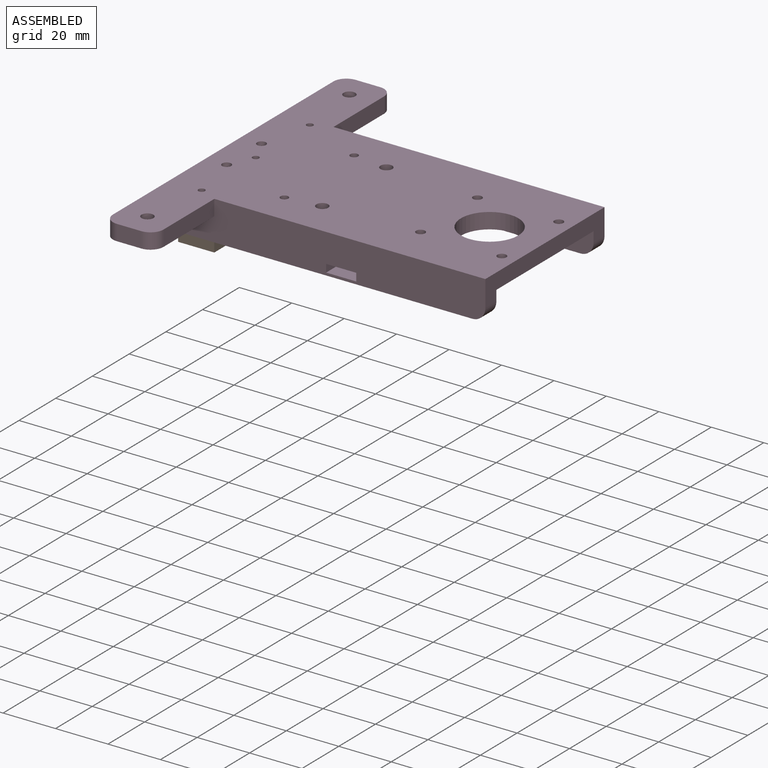
[diagram: assembled view]
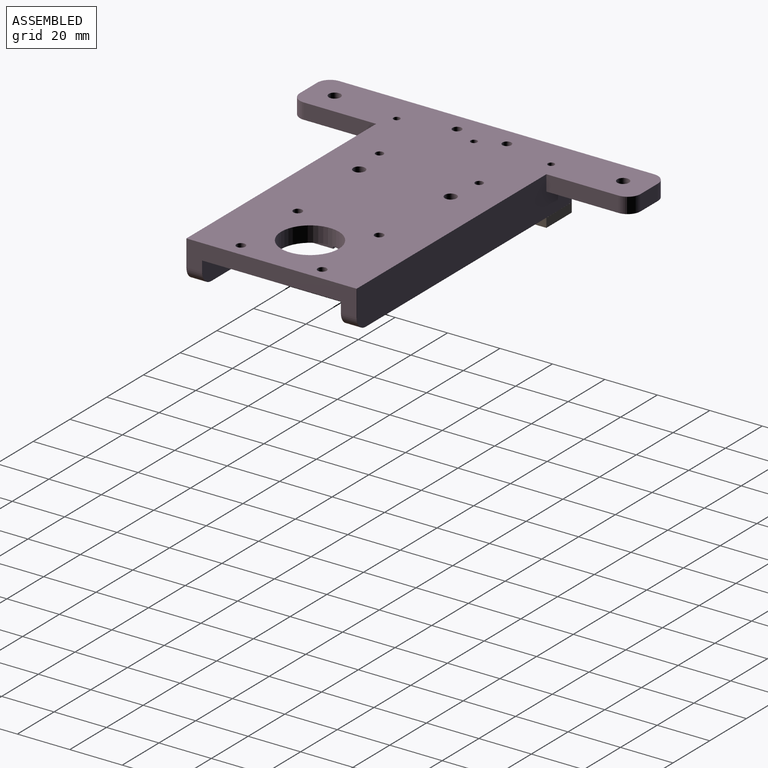
[diagram: assembled view, second angle]
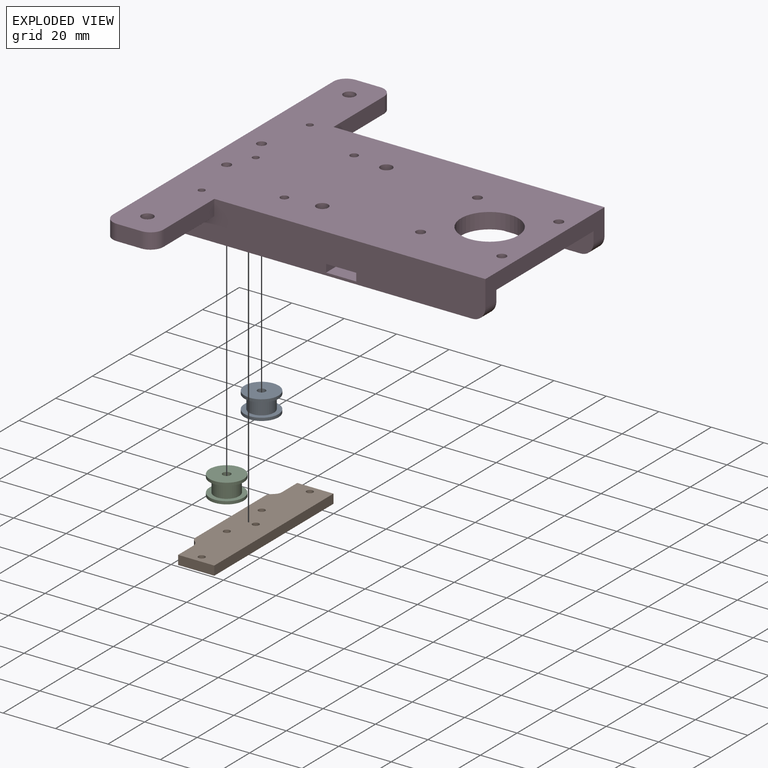
[diagram: exploded view]
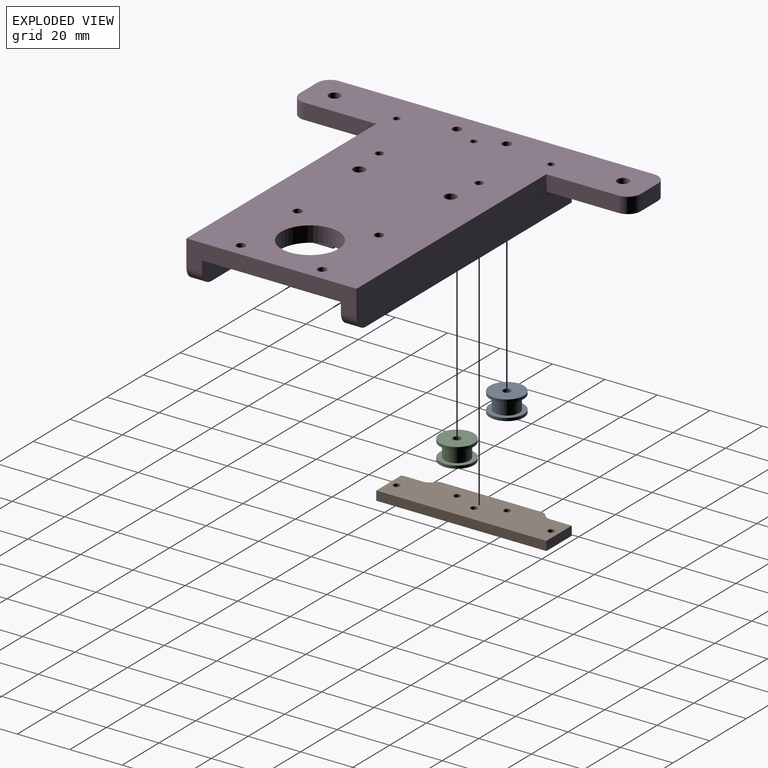
[diagram: exploded view, second angle]
ASSEMBLY  parts=4 mates=3
PART A: 8 faces, bbox 13x13x7.5 mm
  f0: cylinder r=6.5mm len=13mm, axis (0,0,1), area 44.9mm2, adj f2,f3
  f1: cylinder r=1.5mm len=7.47mm, axis (0,0,1), area 70.4mm2, adj f3,f6
  f2: plane 13x13mm, normal (0,0,-1), area 61.9mm2, adj f0,f4
  f3: plane 13x13mm, normal (0,0,1), area 125.7mm2, adj f0,f1
  f4: cylinder r=4.75mm len=9.5mm, axis (0,0,1), area 157.3mm2, adj f2,f7
  f5: cylinder r=6.5mm len=13mm, axis (0,0,1), area 44.9mm2, adj f6,f7
  f6: plane 13x13mm, normal (0,0,-1), area 125.7mm2, adj f1,f5
  f7: plane 13x13mm, normal (0,0,1), area 61.9mm2, adj f4,f5
PART B: 15 faces, bbox 64.9x16.7x3.5 mm
  f0: plane 7.5x3.5mm, normal (0,1,0), area 26.2mm2, adj f1,f7,f8,f9
  f1: plane 13.8x3.5mm, normal (-1,0,0), area 48.3mm2, adj f0,f2,f8,f9
  f2: plane 64.9x3.5mm, normal (0,-1,0), area 227.2mm2, adj f1,f3,f8,f9
  f3: plane 13.8x3.5mm, normal (1,0,0), area 48.3mm2, adj f2,f4,f8,f9
  f4: plane 7.4x3.5mm, normal (0,1,0), area 25.9mm2, adj f3,f5,f8,f9
  f5: extruded ~7.58x3.5mm, area 29.9mm2, adj f4,f6,f8,f9
  f6: plane 34.85x3.5mm, normal (0,1,0), area 122mm2, adj f5,f7,f8,f9
  f7: extruded ~7.58x3.5mm, area 29.9mm2, adj f0,f6,f8,f9
  f8: plane 64.9x16.67mm, normal (0,0,1), area 993.5mm2, adj f0,f1,f2,f3,f4,f5,f6,f7
  f9: plane 64.9x16.67mm, normal (0,0,-1), area 993.5mm2, adj f0,f1,f2,f3,f4,f5,f6,f7
  f10: cylinder r=1.25mm len=3.5mm, axis (0,0,-1), area 27.5mm2, adj f8,f9
  f11: cylinder r=1.25mm len=3.5mm, axis (0,0,-1), area 27.5mm2, adj f8,f9
  f12: cylinder r=1.25mm len=3.5mm, axis (0,0,-1), area 27.5mm2, adj f8,f9
  f13: cylinder r=1.25mm len=3.5mm, axis (0,0,-1), area 27.5mm2, adj f8,f9
  f14: cylinder r=1.25mm len=3.5mm, axis (0,0,-1), area 27.5mm2, adj f8,f9
PART C: same geometry as A
PART D: 103 faces, bbox 130.8x123.5x16 mm
  f0: plane 117.16x15mm, normal (1,0,0), area 1634.9mm2, adj f4,f6,f7,f13,f24,f50,f51,f52
  f1: plane 103.36x8.98mm, normal (-1,0,0), area 887.9mm2, adj f4,f18,f50,f51,f52,f53,f87,f88
  f2: plane 15x10mm, normal (1,0,0), area 115.5mm2, adj f4,f33,f34,f35,f44,f45,f48,f49
  f3: plane 15x10mm, normal (-1,0,0), area 81mm2, adj f4,f33,f34,f35,f44,f45,f46,f49
  f4: plane 129.95x122.68mm, normal (0,0,1), area 6385.8mm2, adj f0,f1,f2,f3,f5,f6,f12,f14
  f5: plane 117.13x14.98mm, normal (-1,0,0), area 1666.2mm2, adj f4,f11,f13,f73,f74,f90,f91,f92
  f6: plane 64.88x10mm, normal (0,-1,0), area 437mm2, adj f0,f4,f13,f59,f60,f89,f93,f96
  f7: plane 27.6x5.95mm, normal (0,-1,0), area 164.2mm2, adj f0,f61,f65,f86
  f8: plane 9.32x5.95mm, normal (1,0,0), area 55.5mm2, adj f61,f62,f67,f84
  f9: plane 120x14.95mm, normal (0,1,0), area 758.8mm2, adj f62,f63,f69,f78,f79,f80,f81,f82
  f10: plane 9.32x5.95mm, normal (-1,0,0), area 55.5mm2, adj f63,f64,f71,f76
  f11: plane 27.5x5.95mm, normal (0,-1,0), area 163.7mm2, adj f5,f64,f73,f74
  f12: cylinder r=11mm len=22mm, axis (0,0,-1), area 414.7mm2, adj f4,f13
  f13: plane 129.95x122.68mm, normal (0,0,-1), area 8667.2mm2, adj f0,f5,f6,f12,f36,f37,f38,f39
  f14: plane 5x4mm, normal (0,-1,0), area 20mm2, adj f4,f15,f16,f58
  f15: plane 79.55x9mm, normal (1,0,0), area 710.6mm2, adj f4,f14,f17,f58,f81
  f16: plane 79.55x9mm, normal (-1,0,0), area 710.6mm2, adj f4,f14,f17,f58,f79
  f17: plane 74.55x5mm, normal (0,0,1), area 367.9mm2, adj f15,f16,f58,f80,f102
  f18: plane 16.93x9mm, normal (0,-1,0), area 152.1mm2, adj f1,f4,f23,f24,f87
  f19: plane 14.86x9mm, normal (0,1,0), area 133.7mm2, adj f4,f24,f97,f98
  f20: plane 9x2.46mm, normal (-1,0,0), area 22.1mm2, adj f4,f21,f24,f98
  f21: cylinder r=8mm len=10.5mm, axis (0,0,-1), area 136mm2, adj f4,f20,f22,f24
  f22: plane 9x1.22mm, normal (-1,0,0), area 11mm2, adj f4,f21,f23,f24
  f23: cylinder r=2.5mm len=9mm, axis (0,0,-1), area 35.3mm2, adj f4,f18,f22,f24
  f24: plane 112.18x25.4mm, normal (0,0,1), area 836.2mm2, adj f0,f18,f19,f20,f21,f22,f23,f59
  f25: cylinder r=2.5mm len=9mm, axis (0,0,-1), area 35.3mm2, adj f4,f26,f31,f32
  f26: plane 9x1.22mm, normal (1,0,0), area 10.9mm2, adj f4,f25,f27,f32
  f27: cylinder r=8mm len=10.49mm, axis (0,0,-1), area 132.9mm2, adj f4,f26,f28,f32
  f28: plane 9x2.8mm, normal (1,0,0), area 25.2mm2, adj f4,f27,f32,f99
  f29: plane 14.96x9mm, normal (0,1,0), area 134.7mm2, adj f4,f32,f90,f99
  f30: plane 103.36x8.98mm, normal (1,0,0), area 922.4mm2, adj f4,f31,f94,f95,f96
  f31: plane 17.02x9mm, normal (0,-1,0), area 153mm2, adj f4,f25,f30,f32,f94
  f32: plane 112.18x25.48mm, normal (0,0,1), area 834.9mm2, adj f25,f26,f27,f28,f29,f31,f60,f91
  f33: plane 10x10mm, normal (0,1,0), area 100mm2, adj f2,f3,f4,f35
  f34: plane 10x10mm, normal (0,-1,0), area 100mm2, adj f2,f3,f4,f35
  f35: plane 15x10mm, normal (0,0,1), area 150mm2, adj f2,f3,f33,f34
  f36: cylinder r=1.5mm len=6mm, axis (0,0,-1), area 56.5mm2, adj f4,f13
  f37: cylinder r=1.5mm len=6mm, axis (0,0,-1), area 56.5mm2, adj f4,f13
  f38: cylinder r=1.7mm len=6mm, axis (0,0,-1), area 64.1mm2, adj f4,f13
  f39: cylinder r=1.7mm len=6mm, axis (0,0,-1), area 64.1mm2, adj f4,f13
  f40: cylinder r=1.7mm len=6mm, axis (0,0,-1), area 64.1mm2, adj f4,f13
  f41: cylinder r=1.7mm len=6mm, axis (0,0,-1), area 64.1mm2, adj f4,f13
  f42: cylinder r=1.7mm len=6mm, axis (0,0,-1), area 64.1mm2, adj f4,f13
  f43: cylinder r=1.7mm len=6mm, axis (0,0,-1), area 64.1mm2, adj f4,f13
  f44: plane 10x6mm, normal (0,1,0), area 48mm2, adj f2,f3,f46,f47,f48,f49
  f45: plane 10x6mm, normal (0,-1,0), area 48mm2, adj f2,f3,f46,f47,f48,f49
  f46: plane 11.5x6mm, normal (0,0,1), area 69mm2, adj f3,f44,f45,f47
  f47: plane 11.5x3mm, normal (-1,0,0), area 34.5mm2, adj f44,f45,f46,f48
  f48: plane 11.5x4mm, normal (0,0,1), area 46mm2, adj f2,f44,f45,f47
  f49: plane 11.5x10mm, normal (0,0,-1), area 115mm2, adj f2,f3,f44,f45
  f50: plane 6x3mm, normal (0,1,0), area 18mm2, adj f0,f1,f51,f53
  f51: plane 11.5x6mm, normal (0,0,-1), area 69mm2, adj f0,f1,f50,f52
  f52: plane 6x3mm, normal (0,-1,0), area 18mm2, adj f0,f1,f51,f53
  f53: plane 11.5x6mm, normal (0,0,1), area 69mm2, adj f0,f1,f50,f52
  f54: cylinder r=2.25mm len=6mm, axis (0,0,-1), area 84.8mm2, adj f4,f13
  f55: cylinder r=2.25mm len=6mm, axis (0,0,-1), area 84.8mm2, adj f4,f13
  f56: cylinder r=2.25mm len=6mm, axis (0,0,-1), area 84.8mm2, adj f4,f13
  f57: cylinder r=2.25mm len=6mm, axis (0,0,-1), area 84.8mm2, adj f4,f13
  f58: cylinder r=5mm len=5mm, axis (-1,0,0), area 39.3mm2, adj f14,f15,f16,f17
  f59: cylinder r=5mm len=5.98mm, axis (-1,0,0), area 46.9mm2, adj f0,f6,f24,f88
  f60: cylinder r=5mm len=5.95mm, axis (1,0,0), area 46.7mm2, adj f6,f32,f92,f95
  f61: cylinder r=5mm len=5.95mm, axis (0,0,1), area 46.7mm2, adj f7,f8,f66,f85
  f62: cylinder r=5mm len=5.95mm, axis (0,0,-1), area 46.7mm2, adj f8,f9,f68,f83
  f63: cylinder r=5mm len=5.95mm, axis (0,0,1), area 46.7mm2, adj f9,f10,f70,f77
  f64: cylinder r=5mm len=5.95mm, axis (0,0,-1), area 46.7mm2, adj f10,f11,f72,f75
  f65: cylinder r=0.02mm len=27.6mm, axis (1,0,0), area 1mm2, adj f0,f7,f13,f66
  f66: torus R=4.98mm, axis (0,0,1), area 0.3mm2, adj f13,f61,f65,f67
  f67: cylinder r=0.02mm len=9.32mm, axis (0,1,0), area 0.4mm2, adj f8,f13,f66,f68
  f68: torus R=4.98mm, axis (0,0,1), area 0.3mm2, adj f13,f62,f67,f69
  f69: cylinder r=0.02mm len=120mm, axis (-1,0,0), area 4.6mm2, adj f9,f13,f68,f70
  f70: torus R=4.98mm, axis (0,0,1), area 0.3mm2, adj f13,f63,f69,f71
  f71: cylinder r=0.02mm len=9.32mm, axis (0,-1,0), area 0.4mm2, adj f10,f13,f70,f72
  f72: torus R=4.98mm, axis (0,0,1), area 0.3mm2, adj f13,f64,f71,f73
  f73: cylinder r=0.02mm len=27.5mm, axis (1,0,0), area 1mm2, adj f5,f11,f13,f72
  f74: cylinder r=0.02mm len=27.5mm, axis (-1,0,0), area 1mm2, adj f4,f5,f11,f75
  f75: torus R=4.98mm, axis (0,0,1), area 0.3mm2, adj f4,f64,f74,f76
  f76: cylinder r=0.02mm len=9.32mm, axis (0,1,0), area 0.4mm2, adj f4,f10,f75,f77
  f77: torus R=4.98mm, axis (0,0,1), area 0.3mm2, adj f4,f63,f76,f78
  f78: cylinder r=0.02mm len=57.52mm, axis (1,0,0), area 2.2mm2, adj f4,f9,f77,f79
  f79: cylinder r=0.02mm len=9.02mm, axis (0,0,1), area 0.3mm2, adj f9,f16,f78,f80
  f80: cylinder r=0.02mm len=5mm, axis (1,0,0), area 0.2mm2, adj f9,f17,f79,f81
  f81: cylinder r=0.02mm len=9.02mm, axis (0,0,-1), area 0.3mm2, adj f9,f15,f80,f82
  f82: cylinder r=0.02mm len=57.52mm, axis (1,0,0), area 2.2mm2, adj f4,f9,f81,f83
  f83: torus R=4.98mm, axis (0,0,1), area 0.3mm2, adj f4,f62,f82,f84
  f84: cylinder r=0.02mm len=9.32mm, axis (0,-1,0), area 0.4mm2, adj f4,f8,f83,f85
  f85: torus R=4.98mm, axis (0,0,1), area 0.3mm2, adj f4,f61,f84,f86
  f86: cylinder r=0.02mm len=27.6mm, axis (-1,0,0), area 1mm2, adj f0,f4,f7,f85
  f87: cylinder r=0.02mm len=98.38mm, axis (0,1,0), area 3.7mm2, adj f1,f18,f24,f88
  f88: torus R=4.98mm, axis (1,0,0), area 0.3mm2, adj f1,f59,f87,f89
  f89: cylinder r=0.02mm len=4mm, axis (0,0,1), area 0.2mm2, adj f1,f4,f6,f88
  f90: cylinder r=0.02mm len=9mm, axis (0,0,-1), area 0.3mm2, adj f4,f5,f29,f91
  f91: cylinder r=0.02mm len=112.18mm, axis (0,1,0), area 4.3mm2, adj f5,f32,f90,f92
  f92: torus R=4.98mm, axis (1,0,0), area 0.3mm2, adj f5,f60,f91,f93
  f93: cylinder r=0.02mm len=10mm, axis (0,0,1), area 0.4mm2, adj f5,f6,f13,f92
  f94: cylinder r=0.02mm len=98.38mm, axis (0,-1,0), area 3.7mm2, adj f30,f31,f32,f95
  f95: torus R=4.98mm, axis (1,0,0), area 0.3mm2, adj f30,f60,f94,f96
  f96: cylinder r=0.02mm len=4mm, axis (0,0,-1), area 0.2mm2, adj f4,f6,f30,f95
  f97: cylinder r=0.02mm len=9mm, axis (0,0,-1), area 0.3mm2, adj f0,f4,f19,f24
  f98: cylinder r=0.02mm len=9mm, axis (0,0,-1), area 0.3mm2, adj f4,f19,f20,f24
  f99: cylinder r=0.02mm len=9mm, axis (0,0,-1), area 0.3mm2, adj f4,f28,f29,f32
  f100: cylinder r=1.25mm len=15mm, axis (0,0,1), area 117.8mm2, adj f13,f32
  f101: cylinder r=1.25mm len=15mm, axis (0,0,1), area 117.8mm2, adj f13,f24
  f102: cylinder r=1.25mm len=15mm, axis (0,0,1), area 117.8mm2, adj f13,f17
PLACE A rot(axis=(1,0,0),180deg) t=(-67.14,-118.77,341.89)mm
PLACE B rot(axis=(0,0,1),90deg) t=(-163.51,-91.26,320.86)mm
PLACE C rot(axis=(1,0,0),180deg) t=(-67.14,-137.76,341.89)mm
PLACE D rot(axis=(0.71,-0.71,0),180deg) t=(-163.51,-91.36,355.36)mm fixed
MATE revolute A.f0 <-> D.f40  axis (0,0,1) through (-192.16,-81.86,349.36)mm
MATE fastened B.f11 <-> D.f102  axis (0,0,1) through (-187.75,-91.31,340.36)mm
MATE revolute C.f0 <-> D.f21  axis (0,0,1) through (-192.16,-100.86,349.36)mm
